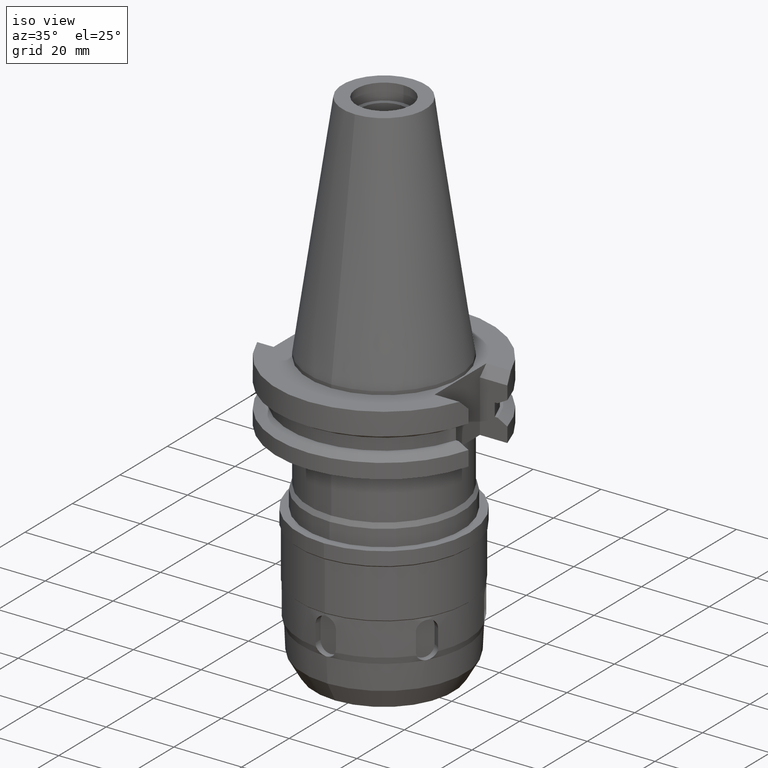
[diagram: clean part render]
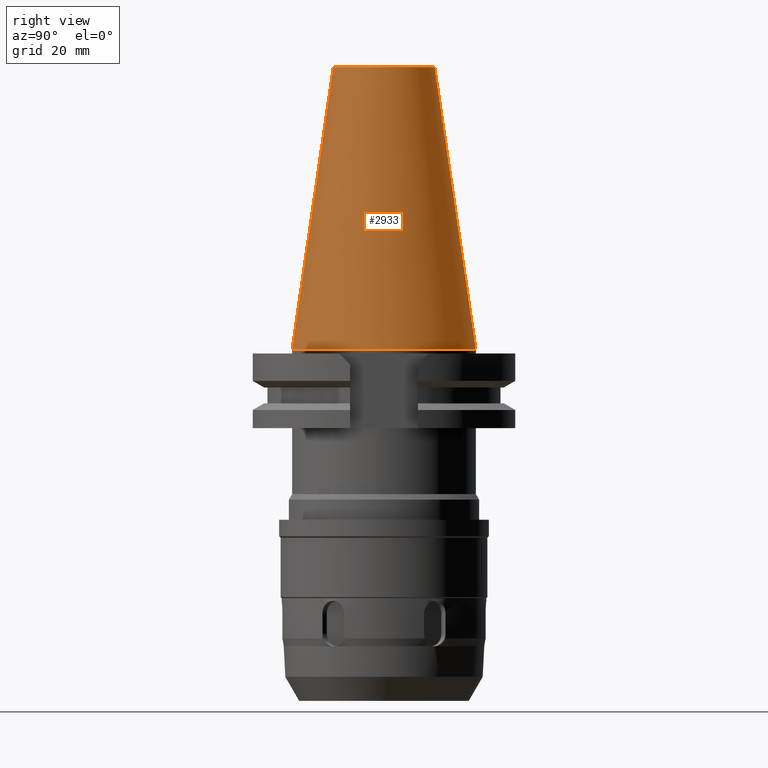
[diagram: tour spotlight — one face highlighted and labeled with its STEP entity id]
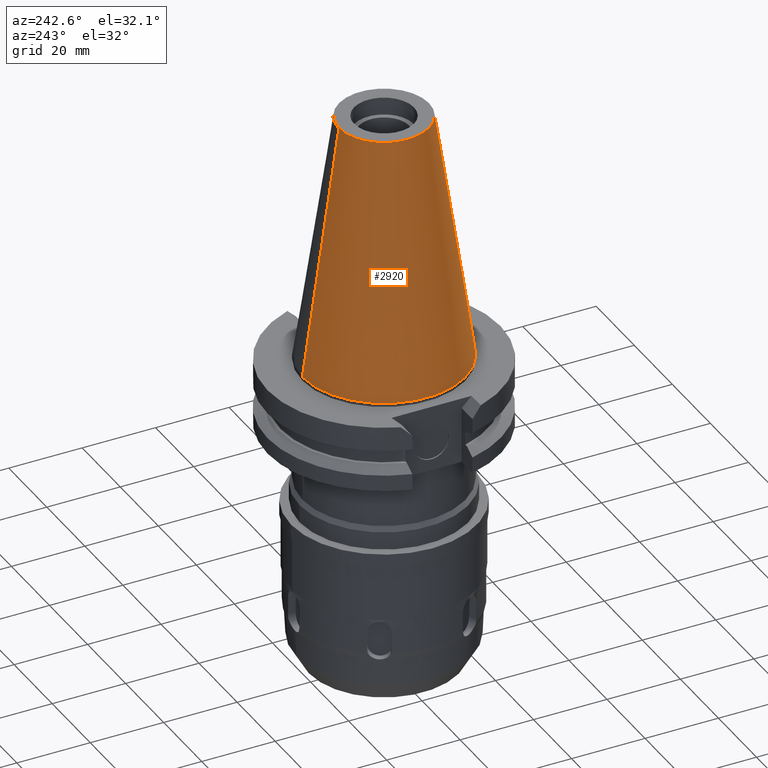
[diagram: tour spotlight — one face highlighted and labeled with its STEP entity id]
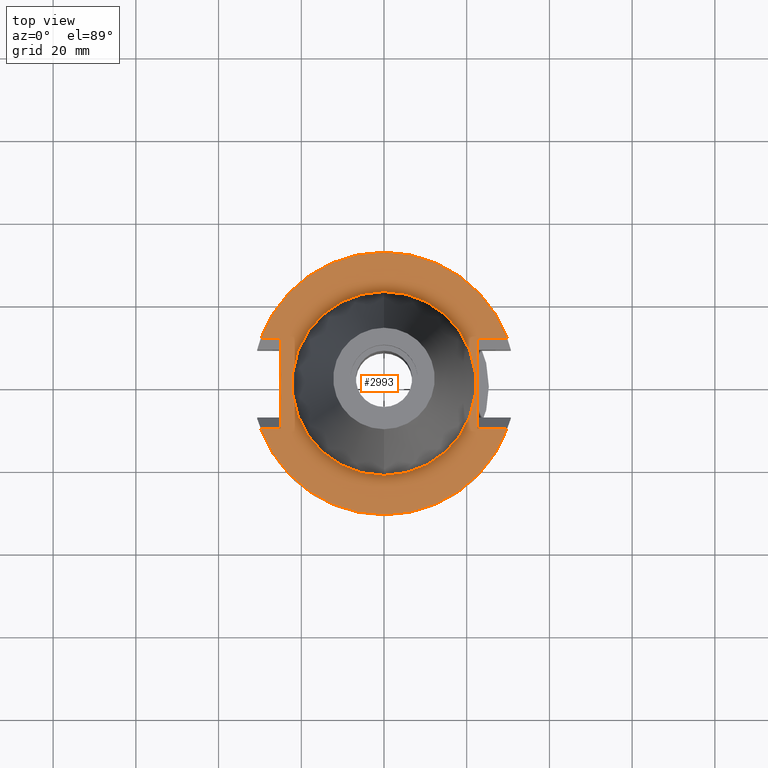
[diagram: tour spotlight — one face highlighted and labeled with its STEP entity id]
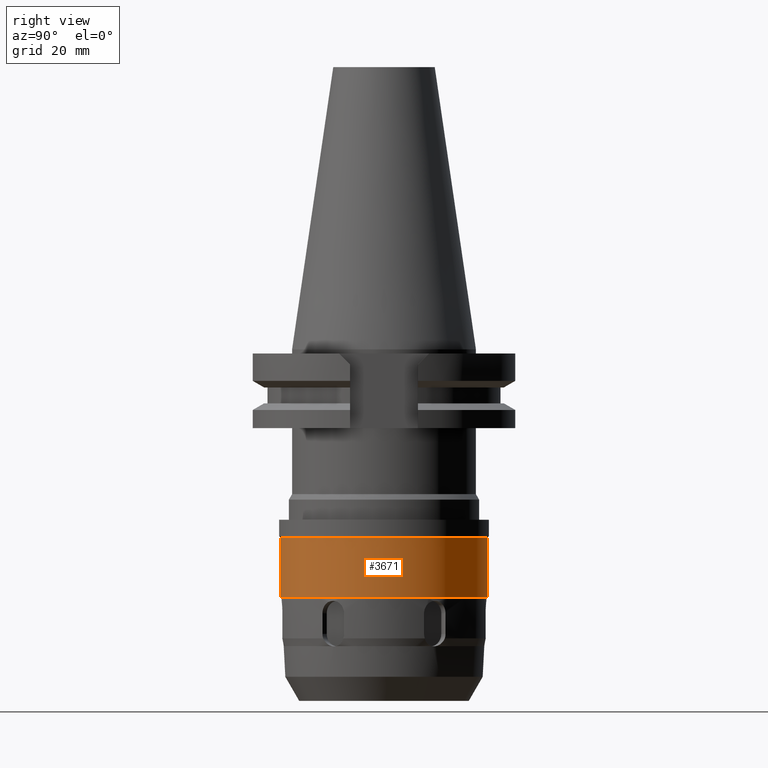
[diagram: tour spotlight — one face highlighted and labeled with its STEP entity id]
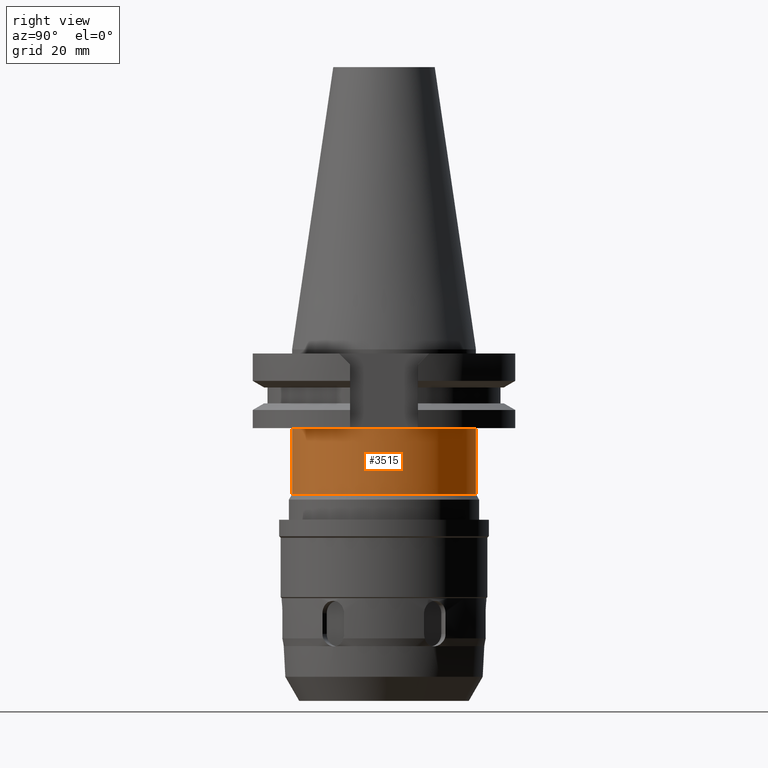
[diagram: tour spotlight — one face highlighted and labeled with its STEP entity id]
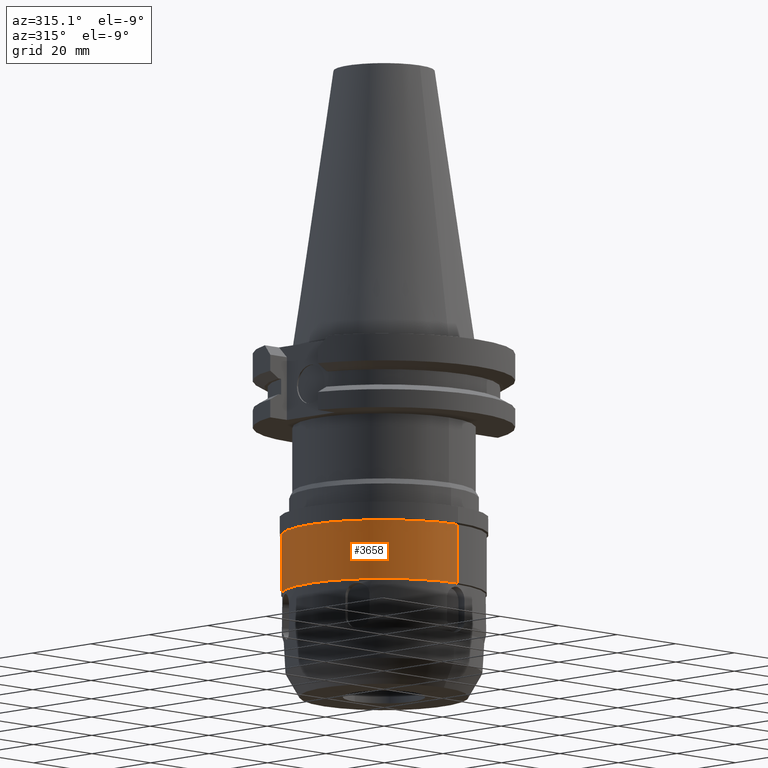
[diagram: tour spotlight — one face highlighted and labeled with its STEP entity id]
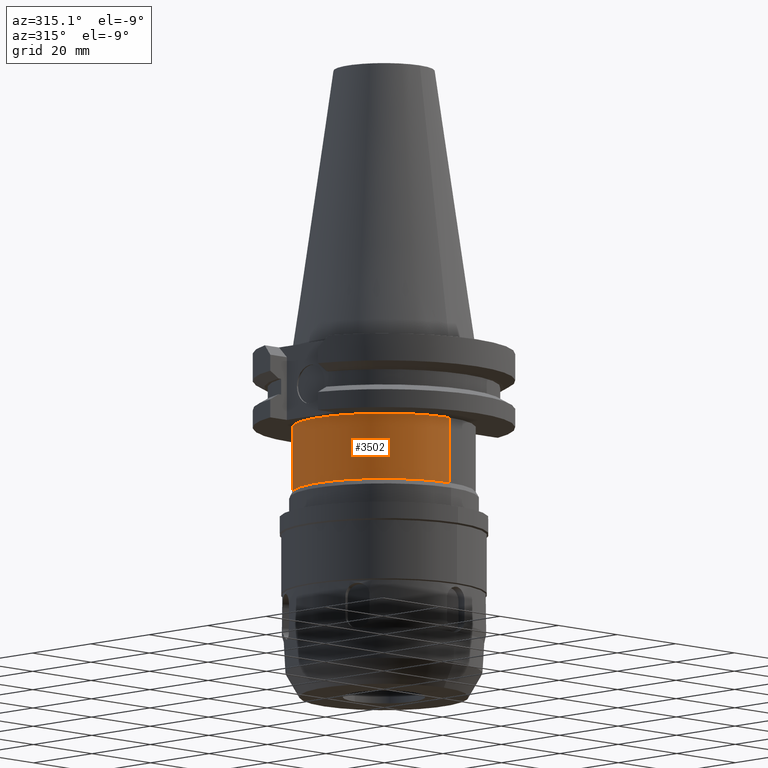
[diagram: tour spotlight — one face highlighted and labeled with its STEP entity id]
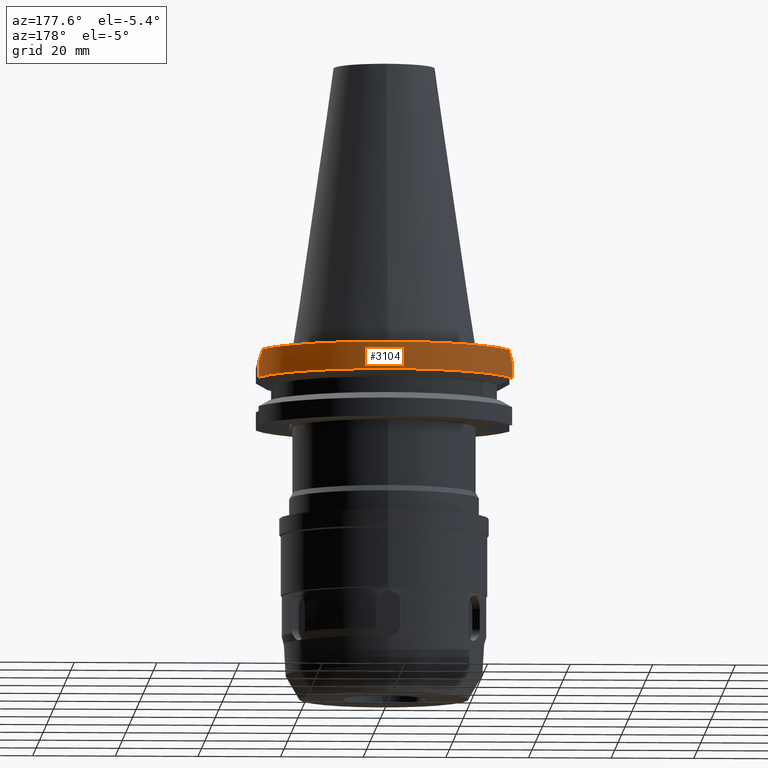
[diagram: tour spotlight — one face highlighted and labeled with its STEP entity id]
A machine part: a face-by-face anatomy tour. The part has 106 B-rep faces; the first image is the clean iso view, then the 8 largest visible faces are spotlighted one at a time (largest first), each with its STEP entity span.

Face 1 — right view, entity #2933. In plain terms, the highlighted conical surface has half-angle 8.297 deg.
Definition (entity closure, byte-faithful):
#26=CARTESIAN_POINT('',(0.E0,1.642557519356E-14,6.825E1));
#27=DIRECTION('',(0.E0,0.E0,-1.E0));
#28=DIRECTION('',(0.E0,1.E0,0.E0));
#29=AXIS2_PLACEMENT_3D('',#26,#27,#28);
#50=DIRECTION('',(0.E0,-1.443069799457E-1,-9.895329683942E-1));
#51=VECTOR('',#50,6.897193138573E1);
#52=CARTESIAN_POINT('',(0.E0,-1.227186888070E1,6.825E1));
#53=LINE('',#52,#51);
#65=DIRECTION('',(0.E0,1.443069799457E-1,-9.895329683942E-1));
#66=VECTOR('',#65,6.897193138573E1);
#67=CARTESIAN_POINT('',(0.E0,1.227186888070E1,6.825E1));
#68=LINE('',#67,#66);
#72=CARTESIAN_POINT('',(0.E0,1.642557519356E-14,-3.126388037344E-13));
#73=DIRECTION('',(0.E0,0.E0,-1.E0));
#74=DIRECTION('',(0.E0,1.E0,0.E0));
#75=AXIS2_PLACEMENT_3D('',#72,#73,#74);
#2514=CARTESIAN_POINT('',(0.E0,-1.227186888070E1,6.825E1));
#2515=CARTESIAN_POINT('',(0.E0,1.227186888070E1,6.825E1));
#2516=VERTEX_POINT('',#2514);
#2517=VERTEX_POINT('',#2515);
#2844=CARTESIAN_POINT('',(0.E0,2.2225E1,-1.776356839400E-13));
#2845=VERTEX_POINT('',#2844);
#2846=CARTESIAN_POINT('',(0.E0,-2.2225E1,-1.776356839400E-13));
#2847=VERTEX_POINT('',#2846);
#2921=CARTESIAN_POINT('',(0.E0,1.642557519356E-14,3.4125E1));
#2922=DIRECTION('',(0.E0,0.E0,-1.E0));
#2923=DIRECTION('',(0.E0,-1.E0,0.E0));
#2924=AXIS2_PLACEMENT_3D('',#2921,#2922,#2923);
#2925=CONICAL_SURFACE('',#2924,1.724843444035E1,8.29715E0);
#2926=ORIENTED_EDGE('',*,*,#2911,.T.);
#2928=ORIENTED_EDGE('',*,*,#2927,.T.);
#2929=ORIENTED_EDGE('',*,*,#2914,.F.);
#2930=ORIENTED_EDGE('',*,*,#2895,.F.);
#2931=EDGE_LOOP('',(#2926,#2928,#2929,#2930));
#2932=FACE_OUTER_BOUND('',#2931,.F.);
#30=CIRCLE('',#29,1.227186888070E1);
#76=CIRCLE('',#75,2.2225E1);
#2895=EDGE_CURVE('',#2517,#2516,#30,.T.);
#2911=EDGE_CURVE('',#2517,#2845,#68,.T.);
#2914=EDGE_CURVE('',#2516,#2847,#53,.T.);
#2927=EDGE_CURVE('',#2845,#2847,#76,.T.);
#2933=ADVANCED_FACE('',(#2932),#2925,.T.);

Face 2 — auxiliary view, entity #2920. In plain terms, the highlighted conical surface has half-angle 8.297 deg.
Definition (entity closure, byte-faithful):
#17=CARTESIAN_POINT('',(0.E0,1.642557519356E-14,6.825E1));
#18=DIRECTION('',(0.E0,0.E0,-1.E0));
#19=DIRECTION('',(0.E0,-1.E0,0.E0));
#20=AXIS2_PLACEMENT_3D('',#17,#18,#19);
#50=DIRECTION('',(0.E0,-1.443069799457E-1,-9.895329683942E-1));
#51=VECTOR('',#50,6.897193138573E1);
#52=CARTESIAN_POINT('',(0.E0,-1.227186888070E1,6.825E1));
#53=LINE('',#52,#51);
#57=CARTESIAN_POINT('',(0.E0,1.642557519356E-14,-3.126388037344E-13));
#58=DIRECTION('',(0.E0,0.E0,-1.E0));
#59=DIRECTION('',(0.E0,-1.E0,0.E0));
#60=AXIS2_PLACEMENT_3D('',#57,#58,#59);
#65=DIRECTION('',(0.E0,1.443069799457E-1,-9.895329683942E-1));
#66=VECTOR('',#65,6.897193138573E1);
#67=CARTESIAN_POINT('',(0.E0,1.227186888070E1,6.825E1));
#68=LINE('',#67,#66);
#2514=CARTESIAN_POINT('',(0.E0,-1.227186888070E1,6.825E1));
#2515=CARTESIAN_POINT('',(0.E0,1.227186888070E1,6.825E1));
#2516=VERTEX_POINT('',#2514);
#2517=VERTEX_POINT('',#2515);
#2844=CARTESIAN_POINT('',(0.E0,2.2225E1,-1.776356839400E-13));
#2845=VERTEX_POINT('',#2844);
#2846=CARTESIAN_POINT('',(0.E0,-2.2225E1,-1.776356839400E-13));
#2847=VERTEX_POINT('',#2846);
#2906=CARTESIAN_POINT('',(0.E0,1.642557519356E-14,3.4125E1));
#2907=DIRECTION('',(0.E0,0.E0,-1.E0));
#2908=DIRECTION('',(0.E0,-1.E0,0.E0));
#2909=AXIS2_PLACEMENT_3D('',#2906,#2907,#2908);
#2910=CONICAL_SURFACE('',#2909,1.724843444035E1,8.29715E0);
#2912=ORIENTED_EDGE('',*,*,#2911,.F.);
#2913=ORIENTED_EDGE('',*,*,#2893,.F.);
#2915=ORIENTED_EDGE('',*,*,#2914,.T.);
#2917=ORIENTED_EDGE('',*,*,#2916,.T.);
#2918=EDGE_LOOP('',(#2912,#2913,#2915,#2917));
#2919=FACE_OUTER_BOUND('',#2918,.F.);
#21=CIRCLE('',#20,1.227186888070E1);
#61=CIRCLE('',#60,2.2225E1);
#2893=EDGE_CURVE('',#2516,#2517,#21,.T.);
#2911=EDGE_CURVE('',#2517,#2845,#68,.T.);
#2914=EDGE_CURVE('',#2516,#2847,#53,.T.);
#2916=EDGE_CURVE('',#2847,#2845,#61,.T.);
#2920=ADVANCED_FACE('',(#2919),#2910,.T.);

Face 3 — top view, entity #2993. In plain terms, the highlighted planar face has unit normal (0, 0, -1).
Definition (entity closure, byte-faithful):
#94=DIRECTION('',(0.E0,-1.E0,0.E0));
#95=VECTOR('',#94,2.178E1);
#96=CARTESIAN_POINT('',(2.257E1,1.089E1,-9.999999999997E-1));
#97=LINE('',#96,#95);
#101=DIRECTION('',(1.E0,5.411847037644E-14,0.E0));
#102=VECTOR('',#101,7.253990343347E0);
#103=CARTESIAN_POINT('',(2.257E1,-1.089E1,-9.999999999997E-1));
#104=LINE('',#103,#102);
#108=CARTESIAN_POINT('',(0.E0,2.154306800550E-14,-9.999999999995E-1));
#109=DIRECTION('',(0.E0,0.E0,-1.E0));
#110=DIRECTION('',(9.393382785306E-1,-3.429921259843E-1,0.E0));
#111=AXIS2_PLACEMENT_3D('',#108,#109,#110);
#116=CARTESIAN_POINT('',(0.E0,2.154306800550E-14,-9.999999999995E-1));
#117=DIRECTION('',(0.E0,0.E0,-1.E0));
#118=DIRECTION('',(0.E0,-1.E0,0.E0));
#119=AXIS2_PLACEMENT_3D('',#116,#117,#118);
#124=DIRECTION('',(-1.E0,-1.067136397114E-13,0.E0));
#125=VECTOR('',#124,4.843990343347E0);
#126=CARTESIAN_POINT('',(-2.498E1,1.089E1,-9.999999999997E-1));
#127=LINE('',#126,#125);
#131=CARTESIAN_POINT('',(0.E0,2.154306800550E-14,-9.999999999995E-1));
#132=DIRECTION('',(0.E0,0.E0,-1.E0));
#133=DIRECTION('',(-9.393382785306E-1,3.429921259843E-1,0.E0));
#134=AXIS2_PLACEMENT_3D('',#131,#132,#133);
#139=CARTESIAN_POINT('',(0.E0,2.154306800550E-14,-9.999999999995E-1));
#140=DIRECTION('',(0.E0,0.E0,-1.E0));
#141=DIRECTION('',(0.E0,1.E0,0.E0));
#142=AXIS2_PLACEMENT_3D('',#139,#140,#141);
#147=CARTESIAN_POINT('',(0.E0,2.154306800550E-14,-9.999999999995E-1));
#148=DIRECTION('',(0.E0,0.E0,1.E0));
#149=DIRECTION('',(0.E0,-1.E0,0.E0));
#150=AXIS2_PLACEMENT_3D('',#147,#148,#149);
#155=CARTESIAN_POINT('',(0.E0,2.154306800550E-14,-9.999999999995E-1));
#156=DIRECTION('',(0.E0,0.E0,1.E0));
#157=DIRECTION('',(0.E0,1.E0,0.E0));
#158=AXIS2_PLACEMENT_3D('',#155,#156,#157);
#291=DIRECTION('',(1.E0,-7.126006732826E-14,0.E0));
#292=VECTOR('',#291,7.253990343348E0);
#293=CARTESIAN_POINT('',(2.257E1,1.089E1,-9.999999999997E-1));
#294=LINE('',#293,#292);
#308=CARTESIAN_POINT('',(2.982399034335E1,1.089E1,-1.000000000001E0));
#335=DIRECTION('',(0.E0,-1.E0,0.E0));
#336=VECTOR('',#335,2.178E1);
#337=CARTESIAN_POINT('',(-2.498E1,1.089E1,-9.999999999997E-1));
#338=LINE('',#337,#336);
#561=DIRECTION('',(-1.E0,8.031026493744E-14,0.E0));
#562=VECTOR('',#561,4.843990343348E0);
#563=CARTESIAN_POINT('',(-2.498E1,-1.089E1,-9.999999999997E-1));
#564=LINE('',#563,#562);
#575=CARTESIAN_POINT('',(2.982399034335E1,-1.089E1,-1.000000000001E0));
#600=CARTESIAN_POINT('',(-2.982399034335E1,-1.089E1,-1.000000000001E0));
#2740=CARTESIAN_POINT('',(2.257E1,-1.089E1,-9.999999999997E-1));
#2741=VERTEX_POINT('',#2740);
#2742=CARTESIAN_POINT('',(2.257E1,1.089E1,-9.999999999997E-1));
#2743=VERTEX_POINT('',#2742);
#2783=CARTESIAN_POINT('',(-2.498E1,1.089E1,-9.999999999997E-1));
#2784=VERTEX_POINT('',#2783);
#2785=CARTESIAN_POINT('',(-2.498E1,-1.089E1,-9.999999999997E-1));
#2786=VERTEX_POINT('',#2785);
#2829=VERTEX_POINT('',#575);
#2830=VERTEX_POINT('',#600);
#2831=CARTESIAN_POINT('',(0.E0,-3.175E1,-9.999999999995E-1));
#2832=VERTEX_POINT('',#2831);
#2835=VERTEX_POINT('',#308);
#2836=CARTESIAN_POINT('',(0.E0,3.175E1,-9.999999999995E-1));
#2837=VERTEX_POINT('',#2836);
#2838=CARTESIAN_POINT('',(-2.982399034335E1,1.089E1,-9.999999999995E-1));
#2839=VERTEX_POINT('',#2838);
#2840=CARTESIAN_POINT('',(0.E0,-2.2225E1,-9.999999999995E-1));
#2841=CARTESIAN_POINT('',(0.E0,2.2225E1,-9.999999999995E-1));
#2842=VERTEX_POINT('',#2840);
#2843=VERTEX_POINT('',#2841);
#2962=CARTESIAN_POINT('',(0.E0,1.212400331156E-14,-9.999999999996E-1));
#2963=DIRECTION('',(0.E0,0.E0,-1.E0));
#2964=DIRECTION('',(0.E0,-1.E0,0.E0));
#2965=AXIS2_PLACEMENT_3D('',#2962,#2963,#2964);
#2966=PLANE('',#2965);
#2968=ORIENTED_EDGE('',*,*,#2967,.T.);
#2970=ORIENTED_EDGE('',*,*,#2969,.T.);
#2972=ORIENTED_EDGE('',*,*,#2971,.T.);
#2974=ORIENTED_EDGE('',*,*,#2973,.T.);
#2976=ORIENTED_EDGE('',*,*,#2975,.F.);
#2978=ORIENTED_EDGE('',*,*,#2977,.F.);
#2980=ORIENTED_EDGE('',*,*,#2979,.T.);
#2982=ORIENTED_EDGE('',*,*,#2981,.T.);
#2984=ORIENTED_EDGE('',*,*,#2983,.T.);
#2986=ORIENTED_EDGE('',*,*,#2985,.F.);
#2987=EDGE_LOOP('',(#2968,#2970,#2972,#2974,#2976,#2978,#2980,#2982,#2984,
#2986));
#2988=FACE_OUTER_BOUND('',#2987,.F.);
#2989=ORIENTED_EDGE('',*,*,#2941,.T.);
#2990=ORIENTED_EDGE('',*,*,#2957,.T.);
#2991=EDGE_LOOP('',(#2989,#2990));
#2992=FACE_BOUND('',#2991,.F.);
#112=CIRCLE('',#111,3.175E1);
#120=CIRCLE('',#119,3.175E1);
#135=CIRCLE('',#134,3.175E1);
#143=CIRCLE('',#142,3.175E1);
#151=CIRCLE('',#150,2.2225E1);
#159=CIRCLE('',#158,2.2225E1);
#2941=EDGE_CURVE('',#2842,#2843,#151,.T.);
#2957=EDGE_CURVE('',#2843,#2842,#159,.T.);
#2967=EDGE_CURVE('',#2743,#2741,#97,.T.);
#2969=EDGE_CURVE('',#2741,#2829,#104,.T.);
#2971=EDGE_CURVE('',#2829,#2832,#112,.T.);
#2973=EDGE_CURVE('',#2832,#2830,#120,.T.);
#2975=EDGE_CURVE('',#2786,#2830,#564,.T.);
#2977=EDGE_CURVE('',#2784,#2786,#338,.T.);
#2979=EDGE_CURVE('',#2784,#2839,#127,.T.);
#2981=EDGE_CURVE('',#2839,#2837,#135,.T.);
#2983=EDGE_CURVE('',#2837,#2835,#143,.T.);
#2985=EDGE_CURVE('',#2743,#2835,#294,.T.);
#2993=ADVANCED_FACE('',(#2988,#2992),#2966,.F.);

Face 4 — right view, entity #3671. In plain terms, the highlighted cylindrical surface (partial cylindrical patch) has radius 25 mm, axis along (0, 0, -1).
Definition (entity closure, byte-faithful):
#975=CARTESIAN_POINT('',(0.E0,0.E0,-4.555E1));
#976=DIRECTION('',(0.E0,0.E0,-1.E0));
#977=DIRECTION('',(0.E0,1.E0,0.E0));
#978=AXIS2_PLACEMENT_3D('',#975,#976,#977);
#1014=DIRECTION('',(0.E0,0.E0,-1.E0));
#1015=VECTOR('',#1014,1.435E1);
#1016=CARTESIAN_POINT('',(0.E0,-2.5E1,-4.555E1));
#1017=LINE('',#1016,#1015);
#1021=DIRECTION('',(0.E0,0.E0,-1.E0));
#1022=VECTOR('',#1021,1.435E1);
#1023=CARTESIAN_POINT('',(0.E0,2.5E1,-4.555E1));
#1024=LINE('',#1023,#1022);
#1043=CARTESIAN_POINT('',(0.E0,0.E0,-5.99E1));
#1044=DIRECTION('',(0.E0,0.E0,1.E0));
#1045=DIRECTION('',(0.E0,-1.E0,0.E0));
#1046=AXIS2_PLACEMENT_3D('',#1043,#1044,#1045);
#2686=CARTESIAN_POINT('',(0.E0,2.5E1,-5.99E1));
#2687=VERTEX_POINT('',#2686);
#2688=CARTESIAN_POINT('',(0.E0,-2.5E1,-5.99E1));
#2689=VERTEX_POINT('',#2688);
#2690=CARTESIAN_POINT('',(0.E0,2.5E1,-4.555E1));
#2691=VERTEX_POINT('',#2690);
#2692=CARTESIAN_POINT('',(0.E0,-2.5E1,-4.555E1));
#2693=VERTEX_POINT('',#2692);
#3659=CARTESIAN_POINT('',(0.E0,2.154306800550E-14,7.59125E1));
#3660=DIRECTION('',(0.E0,0.E0,-1.E0));
#3661=DIRECTION('',(0.E0,-1.E0,0.E0));
#3662=AXIS2_PLACEMENT_3D('',#3659,#3660,#3661);
#3663=CYLINDRICAL_SURFACE('',#3662,2.5E1);
#3664=ORIENTED_EDGE('',*,*,#3649,.T.);
#3666=ORIENTED_EDGE('',*,*,#3665,.F.);
#3667=ORIENTED_EDGE('',*,*,#3652,.F.);
#3668=ORIENTED_EDGE('',*,*,#3623,.F.);
#3669=EDGE_LOOP('',(#3664,#3666,#3667,#3668));
#3670=FACE_OUTER_BOUND('',#3669,.F.);
#979=CIRCLE('',#978,2.5E1);
#1047=CIRCLE('',#1046,2.5E1);
#3623=EDGE_CURVE('',#2691,#2693,#979,.T.);
#3649=EDGE_CURVE('',#2691,#2687,#1024,.T.);
#3652=EDGE_CURVE('',#2693,#2689,#1017,.T.);
#3665=EDGE_CURVE('',#2689,#2687,#1047,.T.);
#3671=ADVANCED_FACE('',(#3670),#3663,.T.);

Face 5 — right view, entity #3515. In plain terms, the highlighted cylindrical surface (partial cylindrical patch) has radius 22.225 mm, axis along (0, 0, -1).
Definition (entity closure, byte-faithful):
#259=CARTESIAN_POINT('',(0.E0,2.154306800550E-14,-1.905E1));
#260=DIRECTION('',(0.E0,0.E0,-1.E0));
#261=DIRECTION('',(0.E0,1.E0,0.E0));
#262=AXIS2_PLACEMENT_3D('',#259,#260,#261);
#848=DIRECTION('',(0.E0,-4.031606118263E-14,-1.E0));
#849=VECTOR('',#848,1.595E1);
#850=CARTESIAN_POINT('',(0.E0,-2.2225E1,-1.905E1));
#851=LINE('',#850,#849);
#855=DIRECTION('',(0.E0,3.987057984359E-14,-1.E0));
#856=VECTOR('',#855,1.595E1);
#857=CARTESIAN_POINT('',(0.E0,2.2225E1,-1.905E1));
#858=LINE('',#857,#856);
#877=CARTESIAN_POINT('',(0.E0,0.E0,-3.5E1));
#878=DIRECTION('',(0.E0,0.E0,1.E0));
#879=DIRECTION('',(0.E0,-1.E0,0.E0));
#880=AXIS2_PLACEMENT_3D('',#877,#878,#879);
#2710=CARTESIAN_POINT('',(0.E0,2.2225E1,-3.5E1));
#2711=VERTEX_POINT('',#2710);
#2712=CARTESIAN_POINT('',(0.E0,-2.2225E1,-3.5E1));
#2713=VERTEX_POINT('',#2712);
#2714=CARTESIAN_POINT('',(0.E0,2.2225E1,-1.905E1));
#2715=VERTEX_POINT('',#2714);
#2716=CARTESIAN_POINT('',(0.E0,-2.2225E1,-1.905E1));
#2717=VERTEX_POINT('',#2716);
#3503=CARTESIAN_POINT('',(0.E0,2.154306800550E-14,7.59125E1));
#3504=DIRECTION('',(0.E0,0.E0,-1.E0));
#3505=DIRECTION('',(0.E0,-1.E0,0.E0));
#3506=AXIS2_PLACEMENT_3D('',#3503,#3504,#3505);
#3507=CYLINDRICAL_SURFACE('',#3506,2.2225E1);
#3508=ORIENTED_EDGE('',*,*,#3493,.T.);
#3510=ORIENTED_EDGE('',*,*,#3509,.F.);
#3511=ORIENTED_EDGE('',*,*,#3496,.F.);
#3512=ORIENTED_EDGE('',*,*,#3041,.F.);
#3513=EDGE_LOOP('',(#3508,#3510,#3511,#3512));
#3514=FACE_OUTER_BOUND('',#3513,.F.);
#263=CIRCLE('',#262,2.2225E1);
#881=CIRCLE('',#880,2.2225E1);
#3041=EDGE_CURVE('',#2715,#2717,#263,.T.);
#3493=EDGE_CURVE('',#2715,#2711,#858,.T.);
#3496=EDGE_CURVE('',#2717,#2713,#851,.T.);
#3509=EDGE_CURVE('',#2713,#2711,#881,.T.);
#3515=ADVANCED_FACE('',(#3514),#3507,.T.);

Face 6 — auxiliary view, entity #3658. In plain terms, the highlighted cylindrical surface (partial cylindrical patch) has radius 25 mm, axis along (0, 0, -1).
Definition (entity closure, byte-faithful):
#1006=CARTESIAN_POINT('',(0.E0,0.E0,-4.555E1));
#1007=DIRECTION('',(0.E0,0.E0,-1.E0));
#1008=DIRECTION('',(0.E0,-1.E0,0.E0));
#1009=AXIS2_PLACEMENT_3D('',#1006,#1007,#1008);
#1014=DIRECTION('',(0.E0,0.E0,-1.E0));
#1015=VECTOR('',#1014,1.435E1);
#1016=CARTESIAN_POINT('',(0.E0,-2.5E1,-4.555E1));
#1017=LINE('',#1016,#1015);
#1021=DIRECTION('',(0.E0,0.E0,-1.E0));
#1022=VECTOR('',#1021,1.435E1);
#1023=CARTESIAN_POINT('',(0.E0,2.5E1,-4.555E1));
#1024=LINE('',#1023,#1022);
#1051=CARTESIAN_POINT('',(0.E0,0.E0,-5.99E1));
#1052=DIRECTION('',(0.E0,0.E0,1.E0));
#1053=DIRECTION('',(0.E0,1.E0,0.E0));
#1054=AXIS2_PLACEMENT_3D('',#1051,#1052,#1053);
#2686=CARTESIAN_POINT('',(0.E0,2.5E1,-5.99E1));
#2687=VERTEX_POINT('',#2686);
#2688=CARTESIAN_POINT('',(0.E0,-2.5E1,-5.99E1));
#2689=VERTEX_POINT('',#2688);
#2690=CARTESIAN_POINT('',(0.E0,2.5E1,-4.555E1));
#2691=VERTEX_POINT('',#2690);
#2692=CARTESIAN_POINT('',(0.E0,-2.5E1,-4.555E1));
#2693=VERTEX_POINT('',#2692);
#3644=CARTESIAN_POINT('',(0.E0,2.154306800550E-14,7.59125E1));
#3645=DIRECTION('',(0.E0,0.E0,-1.E0));
#3646=DIRECTION('',(0.E0,-1.E0,0.E0));
#3647=AXIS2_PLACEMENT_3D('',#3644,#3645,#3646);
#3648=CYLINDRICAL_SURFACE('',#3647,2.5E1);
#3650=ORIENTED_EDGE('',*,*,#3649,.F.);
#3651=ORIENTED_EDGE('',*,*,#3639,.F.);
#3653=ORIENTED_EDGE('',*,*,#3652,.T.);
#3655=ORIENTED_EDGE('',*,*,#3654,.F.);
#3656=EDGE_LOOP('',(#3650,#3651,#3653,#3655));
#3657=FACE_OUTER_BOUND('',#3656,.F.);
#1010=CIRCLE('',#1009,2.5E1);
#1055=CIRCLE('',#1054,2.5E1);
#3639=EDGE_CURVE('',#2693,#2691,#1010,.T.);
#3649=EDGE_CURVE('',#2691,#2687,#1024,.T.);
#3652=EDGE_CURVE('',#2693,#2689,#1017,.T.);
#3654=EDGE_CURVE('',#2687,#2689,#1055,.T.);
#3658=ADVANCED_FACE('',(#3657),#3648,.T.);

Face 7 — auxiliary view, entity #3502. In plain terms, the highlighted cylindrical surface (partial cylindrical patch) has radius 22.225 mm, axis along (0, 0, -1).
Definition (entity closure, byte-faithful):
#251=CARTESIAN_POINT('',(0.E0,2.154306800550E-14,-1.905E1));
#252=DIRECTION('',(0.E0,0.E0,-1.E0));
#253=DIRECTION('',(0.E0,-1.E0,0.E0));
#254=AXIS2_PLACEMENT_3D('',#251,#252,#253);
#848=DIRECTION('',(0.E0,-4.031606118263E-14,-1.E0));
#849=VECTOR('',#848,1.595E1);
#850=CARTESIAN_POINT('',(0.E0,-2.2225E1,-1.905E1));
#851=LINE('',#850,#849);
#855=DIRECTION('',(0.E0,3.987057984359E-14,-1.E0));
#856=VECTOR('',#855,1.595E1);
#857=CARTESIAN_POINT('',(0.E0,2.2225E1,-1.905E1));
#858=LINE('',#857,#856);
#885=CARTESIAN_POINT('',(0.E0,0.E0,-3.5E1));
#886=DIRECTION('',(0.E0,0.E0,1.E0));
#887=DIRECTION('',(0.E0,1.E0,0.E0));
#888=AXIS2_PLACEMENT_3D('',#885,#886,#887);
#2710=CARTESIAN_POINT('',(0.E0,2.2225E1,-3.5E1));
#2711=VERTEX_POINT('',#2710);
#2712=CARTESIAN_POINT('',(0.E0,-2.2225E1,-3.5E1));
#2713=VERTEX_POINT('',#2712);
#2714=CARTESIAN_POINT('',(0.E0,2.2225E1,-1.905E1));
#2715=VERTEX_POINT('',#2714);
#2716=CARTESIAN_POINT('',(0.E0,-2.2225E1,-1.905E1));
#2717=VERTEX_POINT('',#2716);
#3488=CARTESIAN_POINT('',(0.E0,2.154306800550E-14,7.59125E1));
#3489=DIRECTION('',(0.E0,0.E0,-1.E0));
#3490=DIRECTION('',(0.E0,-1.E0,0.E0));
#3491=AXIS2_PLACEMENT_3D('',#3488,#3489,#3490);
#3492=CYLINDRICAL_SURFACE('',#3491,2.2225E1);
#3494=ORIENTED_EDGE('',*,*,#3493,.F.);
#3495=ORIENTED_EDGE('',*,*,#3039,.F.);
#3497=ORIENTED_EDGE('',*,*,#3496,.T.);
#3499=ORIENTED_EDGE('',*,*,#3498,.F.);
#3500=EDGE_LOOP('',(#3494,#3495,#3497,#3499));
#3501=FACE_OUTER_BOUND('',#3500,.F.);
#255=CIRCLE('',#254,2.2225E1);
#889=CIRCLE('',#888,2.2225E1);
#3039=EDGE_CURVE('',#2717,#2715,#255,.T.);
#3493=EDGE_CURVE('',#2715,#2711,#858,.T.);
#3496=EDGE_CURVE('',#2717,#2713,#851,.T.);
#3498=EDGE_CURVE('',#2711,#2713,#889,.T.);
#3502=ADVANCED_FACE('',(#3501),#3492,.T.);

Face 8 — auxiliary view, entity #3104. In plain terms, the highlighted cylindrical surface (partial cylindrical patch) has radius 31.75 mm, axis along (0, 0, -1).
Definition (entity closure, byte-faithful):
#131=CARTESIAN_POINT('',(0.E0,2.154306800550E-14,-9.999999999995E-1));
#132=DIRECTION('',(0.E0,0.E0,-1.E0));
#133=DIRECTION('',(-9.393382785306E-1,3.429921259843E-1,0.E0));
#134=AXIS2_PLACEMENT_3D('',#131,#132,#133);
#139=CARTESIAN_POINT('',(0.E0,2.154306800550E-14,-9.999999999995E-1));
#140=DIRECTION('',(0.E0,0.E0,-1.E0));
#141=DIRECTION('',(0.E0,1.E0,0.E0));
#142=AXIS2_PLACEMENT_3D('',#139,#140,#141);
#267=CARTESIAN_POINT('',(3.067550165920E1,8.189999875258E0,-7.608164472696E0));
#298=DIRECTION('',(-8.521935098869E-9,3.191837454230E-8,1.E0));
#299=VECTOR('',#298,3.908164472696E0);
#300=CARTESIAN_POINT('',(3.067550165920E1,8.189999875258E0,-7.608164472696E0));
#301=LINE('',#300,#299);
#305=CARTESIAN_POINT('',(3.067550162589E1,8.19E0,-3.7E0));
#306=CARTESIAN_POINT('',(3.043345108244E1,9.096596073173E0,-2.793403926827E0));
#307=CARTESIAN_POINT('',(3.015017741992E1,9.996685011754E0,-1.893314988246E0));
#308=CARTESIAN_POINT('',(2.982399034335E1,1.089E1,-1.000000000001E0));
#313=CARTESIAN_POINT('',(-2.982399034335E1,1.089E1,-1.000000000001E0));
#314=CARTESIAN_POINT('',(-3.015017741992E1,9.996685011754E0,-1.893314988246E0));
#315=CARTESIAN_POINT('',(-3.043345108244E1,9.096596073173E0,-2.793403926827E0));
#316=CARTESIAN_POINT('',(-3.067550162589E1,8.19E0,-3.7E0));
#321=DIRECTION('',(4.107077160113E-8,1.538302166988E-7,-1.E0));
#322=VECTOR('',#321,3.908157985308E0);
#323=CARTESIAN_POINT('',(-3.067550162589E1,8.19E0,-3.7E0));
#324=LINE('',#323,#322);
#384=CARTESIAN_POINT('',(-3.067550146538E1,8.190000601193E0,-7.608157985308E0));
#545=CARTESIAN_POINT('',(0.E0,1.121665249528E-14,-7.608163357944E0));
#546=DIRECTION('',(0.E0,0.E0,1.E0));
#547=DIRECTION('',(9.661575315241E-1,2.579527559055E-1,0.E0));
#548=AXIS2_PLACEMENT_3D('',#545,#546,#547);
#553=CARTESIAN_POINT('',(0.E0,1.121665249528E-14,-7.608163357944E0));
#554=DIRECTION('',(0.E0,0.E0,1.E0));
#555=DIRECTION('',(0.E0,1.E0,0.E0));
#556=AXIS2_PLACEMENT_3D('',#553,#554,#555);
#2798=VERTEX_POINT('',#384);
#2799=CARTESIAN_POINT('',(-3.067550162589E1,8.19E0,-3.7E0));
#2800=VERTEX_POINT('',#2799);
#2826=VERTEX_POINT('',#267);
#2827=CARTESIAN_POINT('',(0.E0,3.175E1,-7.608163357944E0));
#2828=VERTEX_POINT('',#2827);
#2833=CARTESIAN_POINT('',(3.067550162589E1,8.19E0,-3.7E0));
#2834=VERTEX_POINT('',#2833);
#2835=VERTEX_POINT('',#308);
#2836=CARTESIAN_POINT('',(0.E0,3.175E1,-9.999999999995E-1));
#2837=VERTEX_POINT('',#2836);
#2838=CARTESIAN_POINT('',(-2.982399034335E1,1.089E1,-9.999999999995E-1));
#2839=VERTEX_POINT('',#2838);
#3085=CARTESIAN_POINT('',(0.E0,2.154306800550E-14,7.59125E1));
#3086=DIRECTION('',(0.E0,0.E0,-1.E0));
#3087=DIRECTION('',(0.E0,-1.E0,0.E0));
#3088=AXIS2_PLACEMENT_3D('',#3085,#3086,#3087);
#3089=CYLINDRICAL_SURFACE('',#3088,3.175E1);
#3090=ORIENTED_EDGE('',*,*,#3055,.T.);
#3091=ORIENTED_EDGE('',*,*,#3077,.T.);
#3092=ORIENTED_EDGE('',*,*,#2983,.F.);
#3093=ORIENTED_EDGE('',*,*,#2981,.F.);
#3095=ORIENTED_EDGE('',*,*,#3094,.T.);
#3097=ORIENTED_EDGE('',*,*,#3096,.T.);
#3099=ORIENTED_EDGE('',*,*,#3098,.F.);
#3101=ORIENTED_EDGE('',*,*,#3100,.F.);
#3102=EDGE_LOOP('',(#3090,#3091,#3092,#3093,#3095,#3097,#3099,#3101));
#3103=FACE_OUTER_BOUND('',#3102,.F.);
#135=CIRCLE('',#134,3.175E1);
#143=CIRCLE('',#142,3.175E1);
#309=B_SPLINE_CURVE_WITH_KNOTS('',3,(#305,#306,#307,#308),.UNSPECIFIED.,.F.,.F.,
(4,4),(0.E0,1.E0),.UNSPECIFIED.);
#317=B_SPLINE_CURVE_WITH_KNOTS('',3,(#313,#314,#315,#316),.UNSPECIFIED.,.F.,.F.,
(4,4),(0.E0,1.E0),.UNSPECIFIED.);
#549=CIRCLE('',#548,3.175E1);
#557=CIRCLE('',#556,3.175E1);
#2981=EDGE_CURVE('',#2839,#2837,#135,.T.);
#2983=EDGE_CURVE('',#2837,#2835,#143,.T.);
#3055=EDGE_CURVE('',#2826,#2834,#301,.T.);
#3077=EDGE_CURVE('',#2834,#2835,#309,.T.);
#3094=EDGE_CURVE('',#2839,#2800,#317,.T.);
#3096=EDGE_CURVE('',#2800,#2798,#324,.T.);
#3098=EDGE_CURVE('',#2828,#2798,#557,.T.);
#3100=EDGE_CURVE('',#2826,#2828,#549,.T.);
#3104=ADVANCED_FACE('',(#3103),#3089,.T.);